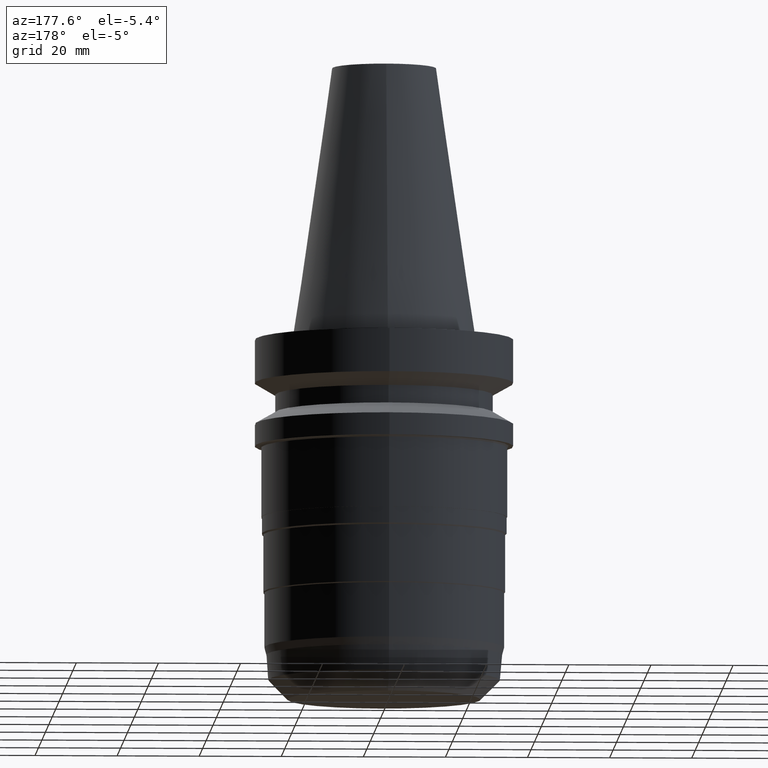
[diagram: clean part render]
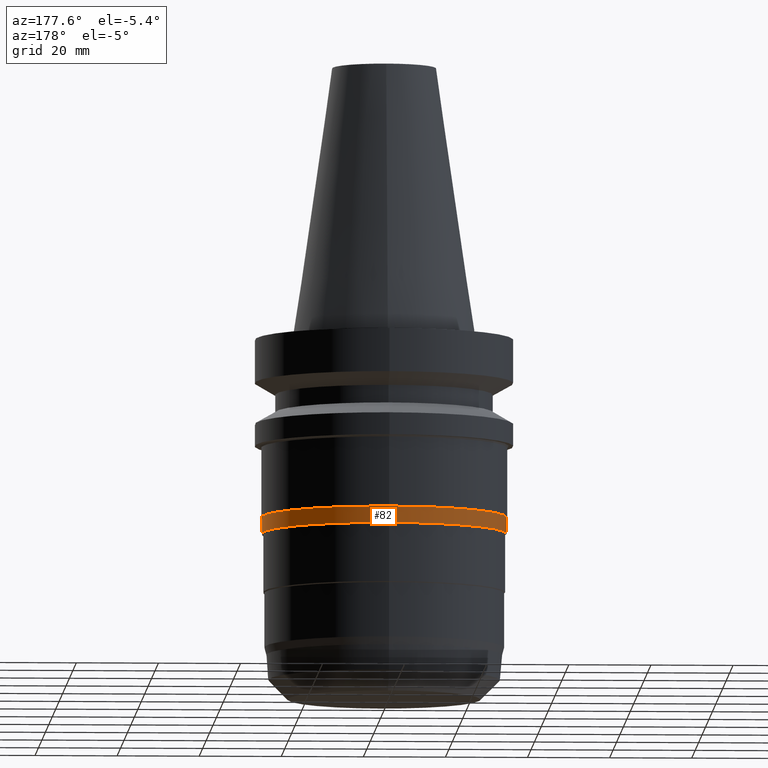
[diagram: same view with one face highlighted and labeled with its STEP entity id]
A machine part, auxiliary view. The second image highlights one B-rep face of the part: STEP entity #82.
In plain terms, the highlighted cylindrical surface (bore or boss wall) has radius 29.85 mm, axis along (0, 0, -1).
Its self-contained STEP definition (entity closure, byte-faithful):
#82=ADVANCED_FACE('Unnamed[1]',(#217,#218),#219,.T.);
#135=EDGE_CURVE('Unnamed[1]',#300,#300,#301,.T.);
#152=EDGE_CURVE('Unnamed[1]',#326,#326,#327,.T.);
#217=FACE_BOUND('',#403,.T.);
#218=FACE_BOUND('',#404,.T.);
#219=CYLINDRICAL_SURFACE('',#405,29.85);
#300=VERTEX_POINT('',#506);
#301=CIRCLE('',#507,29.85);
#326=VERTEX_POINT('',#539);
#327=CIRCLE('',#540,29.85);
#403=EDGE_LOOP('',(#617));
#404=EDGE_LOOP('',(#618));
#405=AXIS2_PLACEMENT_3D('',#619,#620,#621);
#506=CARTESIAN_POINT('',(2.7187158941071E-015,29.85,-44.3999999999997));
#507=AXIS2_PLACEMENT_3D('',#709,#710,#711);
#539=CARTESIAN_POINT('',(2.96364525393659E-015,29.85,-48.4));
#540=AXIS2_PLACEMENT_3D('',#738,#739,#740);
#617=ORIENTED_EDGE('',*,*,#152,.F.);
#618=ORIENTED_EDGE('',*,*,#135,.T.);
#619=CARTESIAN_POINT('',(2.84118057402185E-015,5.6823611480437E-015,-46.3999999999998));
#620=DIRECTION('',(6.12323399573677E-017,1.22464679914685E-016,-1.0));
#621=DIRECTION('',(-1.23259516440807E-032,1.0,1.22464679914685E-016));
#709=CARTESIAN_POINT('',(2.7187158941071E-015,5.43743178821421E-015,-44.3999999999997));
#710=DIRECTION('',(6.12323399573677E-017,1.22464679914685E-016,-1.0));
#711=DIRECTION('',(-1.23259516440807E-032,1.0,1.22464679914685E-016));
#738=CARTESIAN_POINT('',(2.96364525393659E-015,5.92729050787319E-015,-48.4));
#739=DIRECTION('',(6.12323399573677E-017,1.22464679914685E-016,-1.0));
#740=DIRECTION('',(-1.23259516440807E-032,1.0,1.22464679914685E-016));